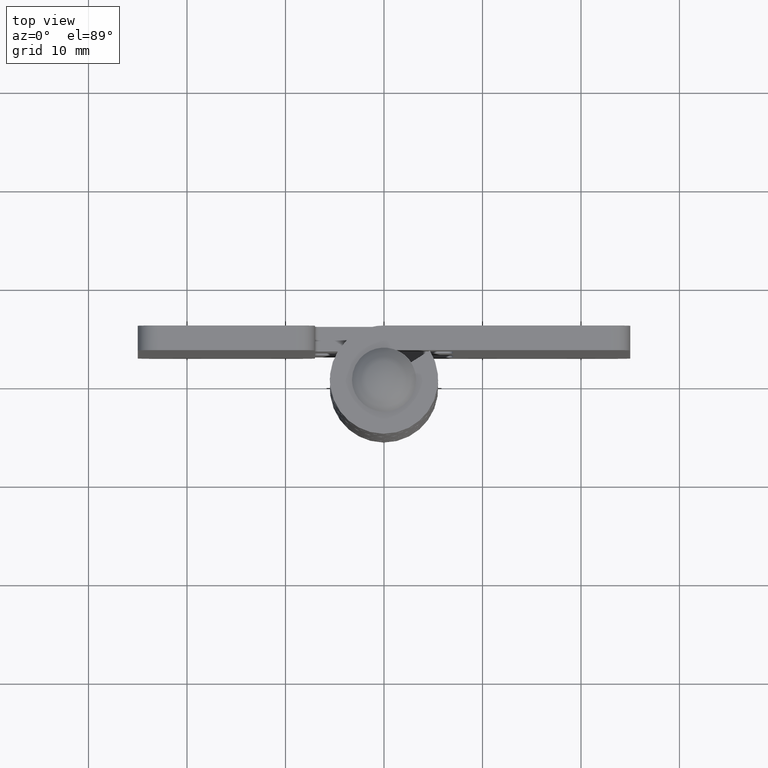
[diagram: clean part render]
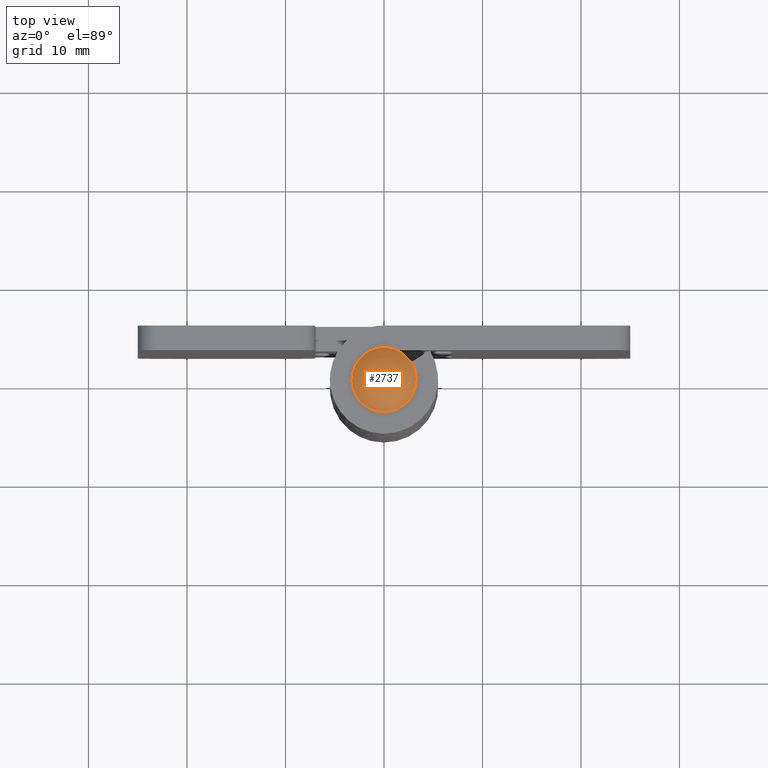
[diagram: same view with one face highlighted and labeled with its STEP entity id]
A machine part, top view. The second image highlights one B-rep face of the part: STEP entity #2737.
In plain terms, the highlighted face is a freeform B-spline surface patch.
Its self-contained STEP definition (entity closure, byte-faithful):
#2666=CARTESIAN_POINT('',(-3.249995519497680,0.0,51.0));
#2667=VERTEX_POINT('',#2666);
#2668=CARTESIAN_POINT('',(3.249995519497680,0.0,51.0));
#2669=VERTEX_POINT('',#2668);
#2670=CARTESIAN_POINT('',(-3.249995519497680,0.0,51.0));
#2671=CARTESIAN_POINT('',(-3.249995519497682,3.249995519497682,50.999999999999986));
#2672=CARTESIAN_POINT('',(0.0,3.249995519497680,51.0));
#2673=CARTESIAN_POINT('',(3.249995519497682,3.249995519497682,50.999999999999986));
#2674=CARTESIAN_POINT('',(3.249995519497680,0.0,51.0));
#2682=(BOUNDED_CURVE()B_SPLINE_CURVE(2,(#2670,#2671,#2672,#2673,#2674),.UNSPECIFIED.,.F.,.U.)B_SPLINE_CURVE_WITH_KNOTS((3,2,3),(0.0,0.250000000000000,0.500000000000000),.UNSPECIFIED.)CURVE()GEOMETRIC_REPRESENTATION_ITEM()RATIONAL_B_SPLINE_CURVE((1.0,0.707106781186548,1.0,0.707106781186548,1.0))REPRESENTATION_ITEM(''));
#2683=EDGE_CURVE('',#2667,#2669,#2682,.T.);
#2685=CARTESIAN_POINT('',(3.249995519497680,0.0,51.0));
#2686=CARTESIAN_POINT('',(3.249995519497682,-3.249995519497682,50.999999999999986));
#2687=CARTESIAN_POINT('',(0.0,-3.249995519497680,51.0));
#2688=CARTESIAN_POINT('',(-3.249995519497682,-3.249995519497682,50.999999999999986));
#2689=CARTESIAN_POINT('',(-3.249995519497680,0.0,51.0));
#2697=(BOUNDED_CURVE()B_SPLINE_CURVE(2,(#2685,#2686,#2687,#2688,#2689),.UNSPECIFIED.,.F.,.U.)B_SPLINE_CURVE_WITH_KNOTS((3,2,3),(0.500000000000000,0.750000000000000,1.0),.UNSPECIFIED.)CURVE()GEOMETRIC_REPRESENTATION_ITEM()RATIONAL_B_SPLINE_CURVE((1.0,0.707106781186548,1.0,0.707106781186548,1.0))REPRESENTATION_ITEM(''));
#2698=EDGE_CURVE('',#2669,#2667,#2697,.T.);
#2709=CARTESIAN_POINT('',(-2.924816127797521,-2.924816127797520,49.628427335239216));
#2710=CARTESIAN_POINT('',(-1.730514816286509,-3.461029632573016,50.760152118040502));
#2711=CARTESIAN_POINT('',(1.730514789356330,-3.461029632573016,50.760152118040502));
#2712=CARTESIAN_POINT('',(2.924816096385126,-2.924816141900951,49.628427365005741));
#2713=CARTESIAN_POINT('',(-3.461029632573017,-1.730514816286509,50.760152118040502));
#2714=CARTESIAN_POINT('',(-2.118995263290672,-2.118995263290671,52.399994999999990));
#2715=CARTESIAN_POINT('',(2.118995230314980,-2.118995263290671,52.399994999999997));
#2716=CARTESIAN_POINT('',(3.461029598461354,-1.730514826160853,50.760152159721819));
#2717=CARTESIAN_POINT('',(-3.461029632573017,1.730514789356333,50.760152118040502));
#2718=CARTESIAN_POINT('',(-2.118995263290672,2.118995230314982,52.399994999999997));
#2719=CARTESIAN_POINT('',(2.118995230314980,2.118995230314982,52.399994999999997));
#2720=CARTESIAN_POINT('',(3.461029598461354,1.730514799230677,50.760152159721819));
#2721=CARTESIAN_POINT('',(-2.924816141900953,2.924816096385128,49.628427365005734));
#2722=CARTESIAN_POINT('',(-1.730514826160854,3.461029598461356,50.760152159721812));
#2723=CARTESIAN_POINT('',(1.730514799230676,3.461029598461356,50.760152159721819));
#2724=CARTESIAN_POINT('',(2.924816110488558,2.924816110488560,49.628427394772224));
#2732=(BOUNDED_SURFACE()B_SPLINE_SURFACE(2,2,((#2709,#2713,#2717,#2721),(#2710,#2714,#2718,#2722),(#2711,#2715,#2719,#2723),(#2712,#2716,#2720,#2724)),.UNSPECIFIED.,.F.,.F.,.U.)B_SPLINE_SURFACE_WITH_KNOTS((3,1,3),(3,1,3),(0.0,3.810305866959381,7.620611674622999),(0.0,3.810305866959375,7.620611674622985),.UNSPECIFIED.)GEOMETRIC_REPRESENTATION_ITEM()RATIONAL_B_SPLINE_SURFACE(((1.448976736111162,1.224488368055581,1.224488368055581,1.448976729124212),(1.224488368055581,1.0,1.0,1.224488361068631),(1.224488368055581,1.0,1.0,1.224488361068631),(1.448976729124212,1.224488361068631,1.224488361068631,1.448976722137262)))REPRESENTATION_ITEM('')SURFACE());
#2733=ORIENTED_EDGE('',*,*,#2698,.F.);
#2734=ORIENTED_EDGE('',*,*,#2683,.F.);
#2735=EDGE_LOOP('',(#2733,#2734));
#2736=FACE_OUTER_BOUND('',#2735,.T.);
#2737=ADVANCED_FACE('',(#2736),#2732,.T.);